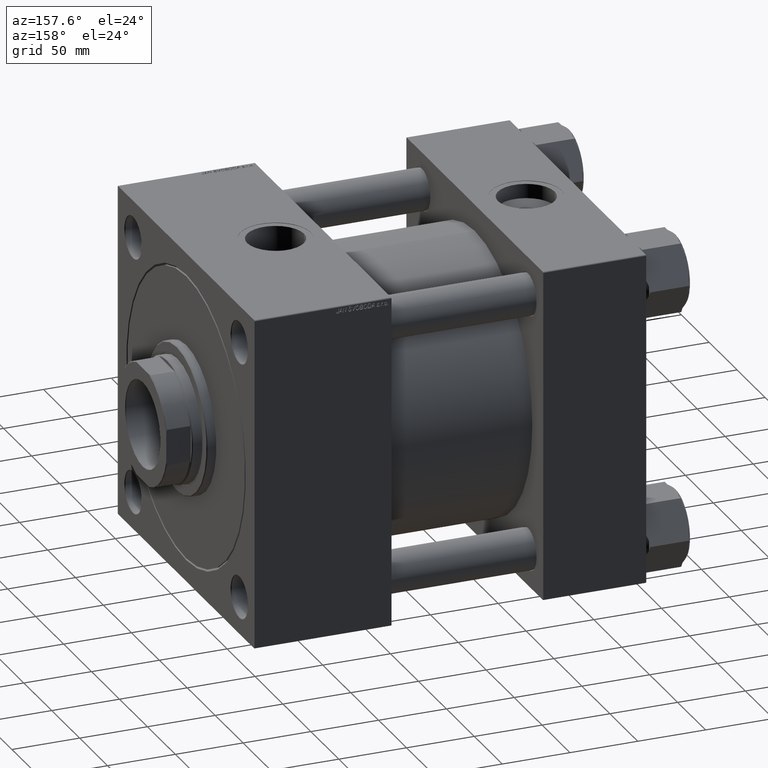
[diagram: clean part render]
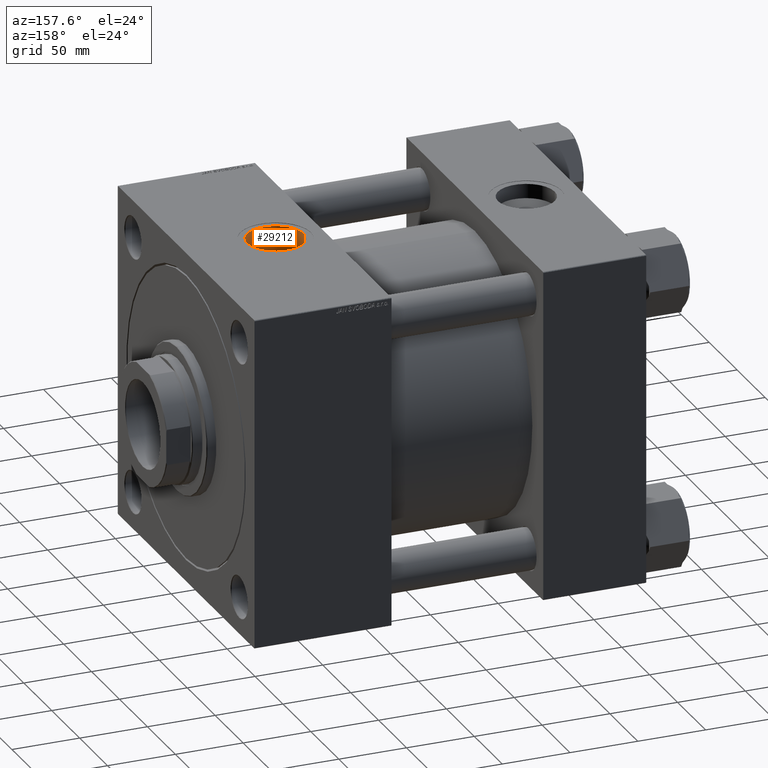
[diagram: same view with one face highlighted and labeled with its STEP entity id]
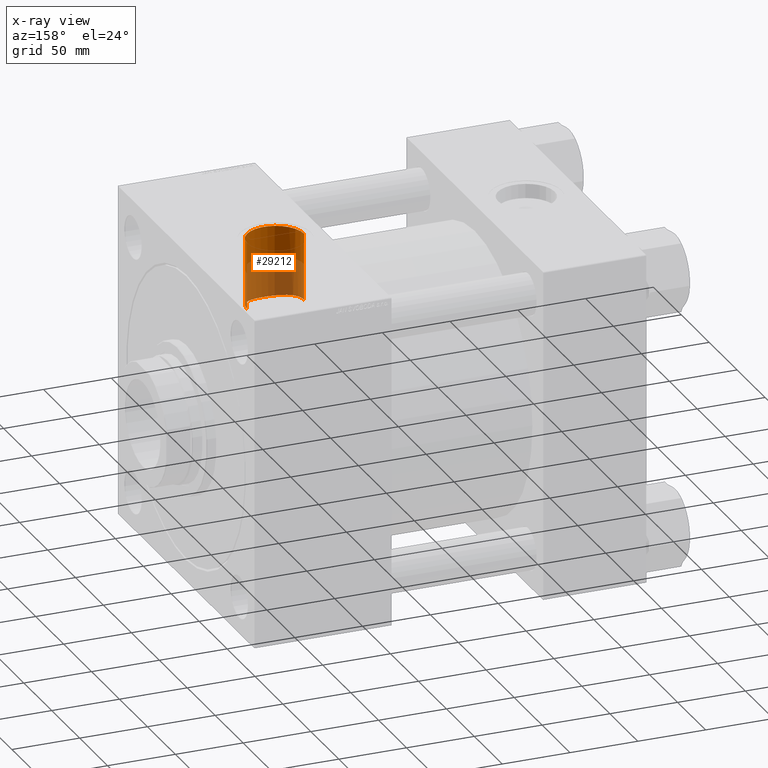
[diagram: x-ray of the same camera — body ghosted, the highlighted face saturated]
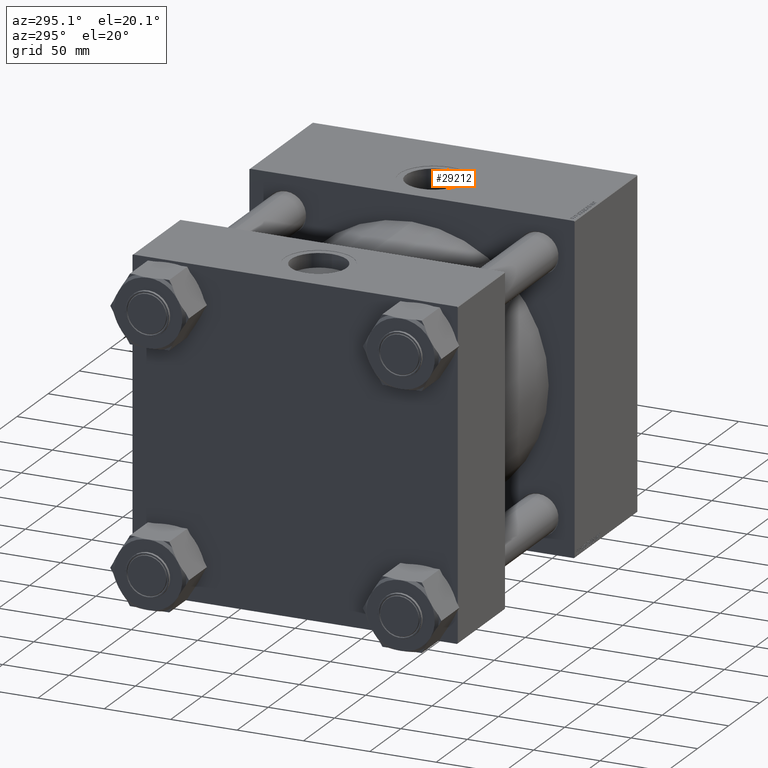
[diagram: same view with one face highlighted and labeled with its STEP entity id]
A machine part, auxiliary view. The second image highlights one B-rep face of the part: STEP entity #29212.
The next image is the same camera in x-ray: the body ghosted, the highlighted face saturated — about 56% of this face is hidden behind the body in this view.
A second angle (auxiliary view) of the same face is appended — the face is thin or edge-on in the first view.
In plain terms, the highlighted cylindrical surface (edge-blend (fillet) strip) has radius 20.96 mm, axis along (0, 0, -1).
Its self-contained STEP definition (entity closure, byte-faithful):
#203 = CARTESIAN_POINT ( 'NONE',  ( 241.1490998918291950, -10.50745506157026732, 72.24243353826487635 ) ) ;
#458 = CARTESIAN_POINT ( 'NONE',  ( 226.4463742243460445, -20.68605275160370738, 70.00790574102234132 ) ) ;
#3540 = CARTESIAN_POINT ( 'NONE',  ( 243.2817238645624798, -5.468000323589479628, 72.80768269049441699 ) ) ;
#3800 = CARTESIAN_POINT ( 'NONE',  ( 217.2279452956803425, -20.15253212239845482, 70.16328393757225967 ) ) ;
#3974 = ORIENTED_EDGE ( 'NONE', *, *, #44753, .F. ) ;
#4304 = CARTESIAN_POINT ( 'NONE',  ( 216.2355398758888043, -19.85048979358304777, 70.24956875561315428 ) ) ;
#4751 = CARTESIAN_POINT ( 'NONE',  ( 243.9599999999999795, -1.131092811680160736E-14, 122.2999999999999972 ) ) ;
#5750 = VERTEX_POINT ( 'NONE', #24787 ) ;
#6004 = CARTESIAN_POINT ( 'NONE',  ( 243.9599999999999795, 8.939817063969891153E-15, 73.00000000000000000 ) ) ;
#6358 = EDGE_CURVE ( 'NONE', #17345, #23284, #43722, .T. ) ;
#6869 = CARTESIAN_POINT ( 'NONE',  ( 243.9599999999999795, 8.939817063969891153E-15, 73.00000000000000000 ) ) ;
#7632 = CARTESIAN_POINT ( 'NONE',  ( 223.6938400997032943, -20.95990112699987051, 69.92626505653647939 ) ) ;
#8143 = CARTESIAN_POINT ( 'NONE',  ( 204.1785217651144251, -9.324475399923368713, 72.41318375418211417 ) ) ;
#8394 = CARTESIAN_POINT ( 'NONE',  ( 232.3276446205177592, -18.82106543936009402, 70.53418626375813005 ) ) ;
#9714 = DIRECTION ( 'NONE',  ( 0.000000000000000000, 0.000000000000000000, -1.000000000000000000 ) ) ;
#9961 = CARTESIAN_POINT ( 'NONE',  ( 243.6896154434917037, -3.426784267314502141, 72.92270957088685179 ) ) ;
#11228 = CARTESIAN_POINT ( 'NONE',  ( 217.5630264307337143, -20.24550240627127451, 70.13649053211051410 ) ) ;
#11484 = CARTESIAN_POINT ( 'NONE',  ( 224.3923027695314545, -20.92511285017575773, 69.93671974428271199 ) ) ;
#11728 = CARTESIAN_POINT ( 'NONE',  ( 221.6212996415953000, -20.96019710479842857, 69.92617633883915573 ) ) ;
#11994 = CARTESIAN_POINT ( 'NONE',  ( 208.6664467950246262, -15.30792271522880910, 71.37862452190249485 ) ) ;
#12252 = CARTESIAN_POINT ( 'NONE',  ( 203.3891219195750750, -7.429881023423288156, 72.62369188978864543 ) ) ;
#12297 = VECTOR ( 'NONE', #28131, 1000.000000000000000 ) ;
#12825 = DIRECTION ( 'NONE',  ( -1.000000000000000000, 0.000000000000000000, 0.000000000000000000 ) ) ;
#15082 = CARTESIAN_POINT ( 'NONE',  ( 236.8286780104702416, -15.76570204346668547, 71.27861442370591760 ) ) ;
#15350 = CARTESIAN_POINT ( 'NONE',  ( 210.2230388352013790, -16.62934786940848753, 71.08207608813650324 ) ) ;
#15486 = ORIENTED_EDGE ( 'NONE', *, *, #6358, .F. ) ;
#15610 = CARTESIAN_POINT ( 'NONE',  ( 203.1553683602674027, -6.781839252738032897, 72.68734360114403614 ) ) ;
#15857 = CARTESIAN_POINT ( 'NONE',  ( 228.4601454297183238, -20.28258136509749932, 70.12628231920038502 ) ) ;
#15908 = AXIS2_PLACEMENT_3D ( 'NONE', #32615, #16993, #17490 ) ;
#16118 = CARTESIAN_POINT ( 'NONE',  ( 239.6532372683194581, -12.80064943333325189, 71.87812324548927734 ) ) ;
#16993 = DIRECTION ( 'NONE',  ( -0.000000000000000000, -0.000000000000000000, -1.000000000000000000 ) ) ;
#17345 = VERTEX_POINT ( 'NONE', #4751 ) ;
#17490 = DIRECTION ( 'NONE',  ( 1.000000000000000000, 0.000000000000000000, 0.000000000000000000 ) ) ;
#18929 = CARTESIAN_POINT ( 'NONE',  ( 202.1774154441112046, -2.762878381059121313, 72.96020431692140562 ) ) ;
#19949 = CARTESIAN_POINT ( 'NONE',  ( 225.7671570199753148, -20.78801810710769260, 69.97759226753588280 ) ) ;
#20761 = DIRECTION ( 'NONE',  ( 0.000000000000000000, 0.000000000000000000, -1.000000000000000000 ) ) ;
#22557 = EDGE_LOOP ( 'NONE', ( #15486, #40917, #30878, #3974 ) ) ;
#23027 = CARTESIAN_POINT ( 'NONE',  ( 242.8807134585548511, -6.778603163634969064, 72.69570419330156597 ) ) ;
#23284 = VERTEX_POINT ( 'NONE', #41215 ) ;
#23532 = CARTESIAN_POINT ( 'NONE',  ( 240.7934863802372263, -11.09863851081829367, 72.15365915882848924 ) ) ;
#23786 = CARTESIAN_POINT ( 'NONE',  ( 233.5290929603473842, -18.17440030520087291, 70.70571288897384932 ) ) ;
#24033 = CARTESIAN_POINT ( 'NONE',  ( 202.7504044797549057, -5.454963779267728796, 72.79894665177256741 ) ) ;
#24787 = CARTESIAN_POINT ( 'NONE',  ( 202.0399999999999636, -1.610560222933687567E-14, 73.00000000000000000 ) ) ;
#26865 = CARTESIAN_POINT ( 'NONE',  ( 205.9649601165576485, -12.23101393647206514, 71.97037141782094238 ) ) ;
#27373 = CARTESIAN_POINT ( 'NONE',  ( 213.6952659423795353, -18.83117820539490950, 70.53143123999750230 ) ) ;
#27631 = CARTESIAN_POINT ( 'NONE',  ( 207.7051294626758704, -14.34747993836448288, 71.57786219154903051 ) ) ;
#27890 = CARTESIAN_POINT ( 'NONE',  ( 235.2240939491740335, -17.03981758637977606, 70.98447916284816017 ) ) ;
#28131 = DIRECTION ( 'NONE',  ( 0.000000000000000000, 0.000000000000000000, -1.000000000000000000 ) ) ;
#28657 = EDGE_CURVE ( 'NONE', #17345, #49667, #32226, .T. ) ;
#29212 = ADVANCED_FACE ( 'NONE', ( #43845 ), #44588, .F. ) ;
#30703 = CARTESIAN_POINT ( 'NONE',  ( 202.0399999999999636, -1.610560222933687567E-14, 73.00000000000000000 ) ) ;
#30878 = ORIENTED_EDGE ( 'NONE', *, *, #44884, .T. ) ;
#31224 = CARTESIAN_POINT ( 'NONE',  ( 237.3407223674005309, -15.30139099499403521, 71.38004774415902887 ) ) ;
#31474 = CARTESIAN_POINT ( 'NONE',  ( 220.2560640078206973, -20.82509494167162245, 69.96709075955770629 ) ) ;
#31736 = CARTESIAN_POINT ( 'NONE',  ( 229.7716453533519996, -19.88422182655822112, 70.24187966245939663 ) ) ;
#32226 = LINE ( 'NONE', #35837, #12297 ) ;
#32547 = CARTESIAN_POINT ( 'NONE',  ( 222.9999999999999716, -1.387778780781445991E-14, 145.2999999999999829 ) ) ;
#32615 = CARTESIAN_POINT ( 'NONE',  ( 222.9999999999999716, -1.387778780781445991E-14, 122.2999999999999972 ) ) ;
#34047 = CARTESIAN_POINT ( 'NONE',  ( 243.9263940180627799, -1.371452482010626639, 72.99032939255260999 ) ) ;
#34553 = CARTESIAN_POINT ( 'NONE',  ( 235.7710887859448974, -16.63397089278883101, 71.08100482846708701 ) ) ;
#35576 = CARTESIAN_POINT ( 'NONE',  ( 206.3777873889842738, -12.78639808919218801, 71.87347892161744767 ) ) ;
#35837 = CARTESIAN_POINT ( 'NONE',  ( 243.9599999999999795, -1.131092811680160736E-14, 145.2999999999999829 ) ) ;
#38656 = CARTESIAN_POINT ( 'NONE',  ( 241.8000542513875644, -9.292706758496022346, 72.40871091589835373 ) ) ;
#38905 = CARTESIAN_POINT ( 'NONE',  ( 202.0400000000000205, -1.392399180500920375, 73.00000000000001421 ) ) ;
#39419 = CARTESIAN_POINT ( 'NONE',  ( 210.7740666760411443, -17.03885063037197511, 70.98473803185774500 ) ) ;
#39675 = CARTESIAN_POINT ( 'NONE',  ( 202.5821455851781820, -4.786000650757876507, 72.84607350777257295 ) ) ;
#39993 = CARTESIAN_POINT ( 'NONE',  ( 202.0399999999999636, -1.387778780781445991E-14, 145.2999999999999829 ) ) ;
#40917 = ORIENTED_EDGE ( 'NONE', *, *, #28657, .T. ) ;
#41215 = CARTESIAN_POINT ( 'NONE',  ( 202.0399999999999636, -1.387778780781445991E-14, 122.2999999999999972 ) ) ;
#41491 = CARTESIAN_POINT ( 'NONE',  ( 243.9600000000001216, -0.6860956652081730001, 73.00000000000001421 ) ) ;
#42689 = AXIS2_PLACEMENT_3D ( 'NONE', #32547, #20761, #12825 ) ;
#42750 = CARTESIAN_POINT ( 'NONE',  ( 242.0935977153022520, -8.673164555340028059, 72.48572227582828020 ) ) ;
#43008 = CARTESIAN_POINT ( 'NONE',  ( 215.5893671943640015, -19.61814360589775674, 70.31502298797768447 ) ) ;
#43264 = CARTESIAN_POINT ( 'NONE',  ( 204.8222132668303175, -10.52446732438173171, 72.24654900596358686 ) ) ;
#43523 = CARTESIAN_POINT ( 'NONE',  ( 209.1698886108219142, -15.76432574300271483, 71.27890841918058129 ) ) ;
#43722 = CIRCLE ( 'NONE', #15908, 20.96000000000000796 ) ;
#43845 = FACE_OUTER_BOUND ( 'NONE', #22557, .T. ) ;
#44588 = CYLINDRICAL_SURFACE ( 'NONE', #42689, 20.96000000000000796 ) ;
#44753 = EDGE_CURVE ( 'NONE', #23284, #5750, #47941, .T. ) ;
#44884 = EDGE_CURVE ( 'NONE', #49667, #5750, #48622, .T. ) ;
#46871 = CARTESIAN_POINT ( 'NONE',  ( 238.7905222449937810, -13.85099797244058628, 71.68071556930685517 ) ) ;
#47127 = CARTESIAN_POINT ( 'NONE',  ( 218.2334663649609183, -20.41375042419390695, 70.08770552287961664 ) ) ;
#47380 = CARTESIAN_POINT ( 'NONE',  ( 207.2472530390070915, -13.84344217902598295, 71.67738874308588493 ) ) ;
#47941 = LINE ( 'NONE', #39993, #48122 ) ;
#48122 = VECTOR ( 'NONE', #9714, 1000.000000000000000 ) ;
#48622 = B_SPLINE_CURVE_WITH_KNOTS ( 'NONE', 3,
 ( #6869, #41491, #34047, #49708, #9961, #3540, #23027, #42750, #38656, #203, #23532, #16118, #46871, #31224, #15082, #34553, #27890, #23786, #8394, #31736, #15857, #458, #19949, #11484, #7632, #11728, #31474, #50731, #47127, #11228, #3800, #4304, #43008, #27373, #50211, #39419, #15350, #43523, #11994, #27631, #47380, #35576, #26865, #43264, #8143, #12252, #15610, #24033, #39675, #18929, #38905, #30703 ),
 .UNSPECIFIED., .F., .F.,
 ( 4, 2, 2, 2, 2, 2, 2, 2, 2, 2, 2, 2, 2, 2, 2, 2, 2, 2, 2, 2, 2, 2, 2, 2, 2, 4 ),
 ( 0.06587899507149015677, 0.06793715541813938330, 0.06999531576478862371, 0.07411163645808710454, 0.07616979680473633108, 0.07822795715138555761, 0.08234427784468399680, 0.08440243819133318171, 0.08646059853798238048, 0.09057691923128075029, 0.09469323992457913397, 0.09675140027122831887, 0.09880956061787751765, 0.1029258813111758042, 0.1039549614845003411, 0.1049840416578248781, 0.1070422020044740075, 0.1111585226977722107, 0.1132166830444213124, 0.1152748433910704140, 0.1173330037377195156, 0.1193911640843686034, 0.1235074847776668067, 0.1255656451243159222, 0.1276238054709650238, 0.1317401261642632271 ),
 .UNSPECIFIED. ) ;
#49667 = VERTEX_POINT ( 'NONE', #6004 ) ;
#49708 = CARTESIAN_POINT ( 'NONE',  ( 243.7914293043783971, -2.740678016597591693, 72.95174947013322253 ) ) ;
#50211 = CARTESIAN_POINT ( 'NONE',  ( 212.4913322302871279, -18.18753989658438996, 70.70244160941379619 ) ) ;
#50731 = CARTESIAN_POINT ( 'NONE',  ( 218.5697173171924703, -20.48932540627172116, 70.06562953716161246 ) ) ;